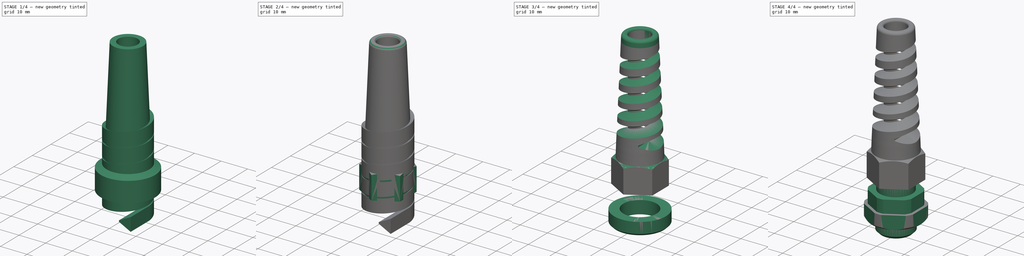
[diagram: build sequence overview — one tinted view per stage of 4, left to right]
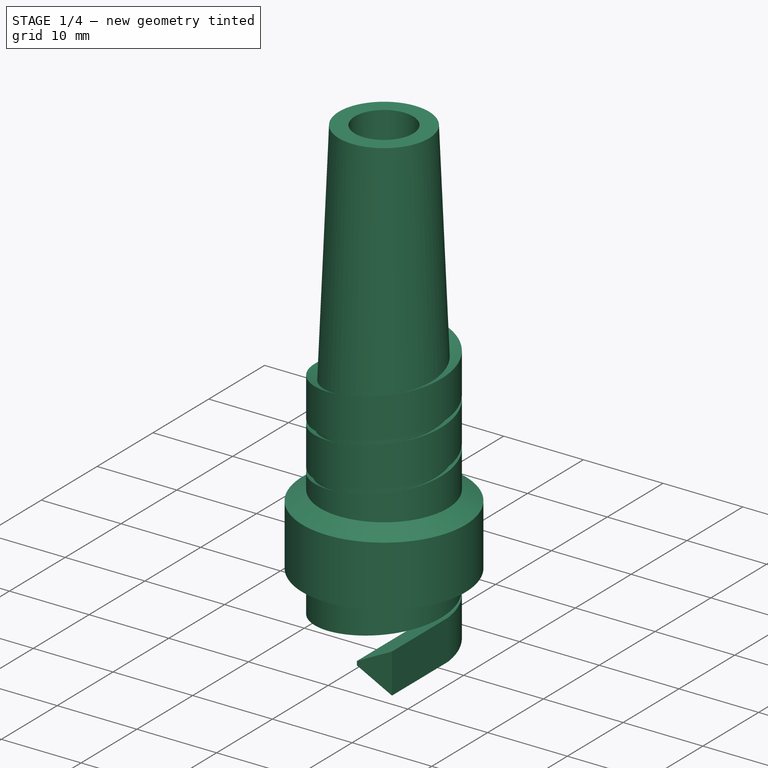
[diagram: stage 1 of 4 — iso view after this stage's code; geometry added in this stage tinted green]
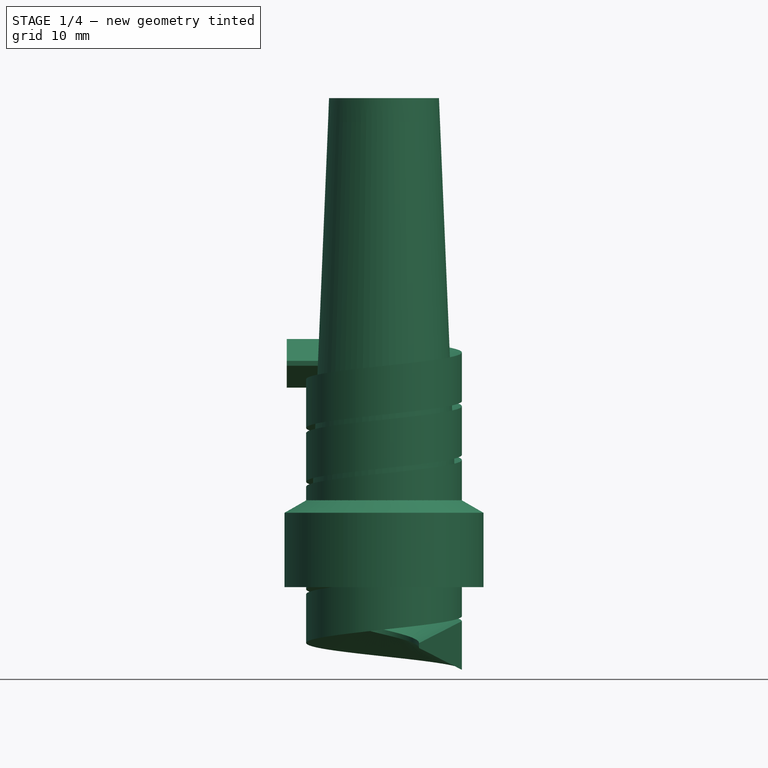
[diagram: stage 1 of 4 — front view after this stage's code; geometry added in this stage tinted green]
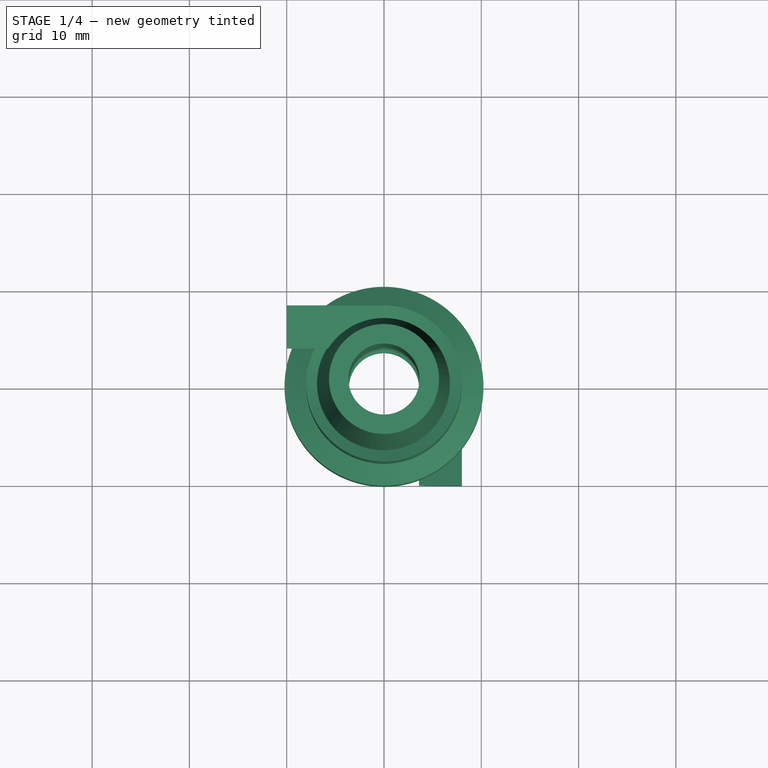
[diagram: stage 1 of 4 — top view after this stage's code; geometry added in this stage tinted green]
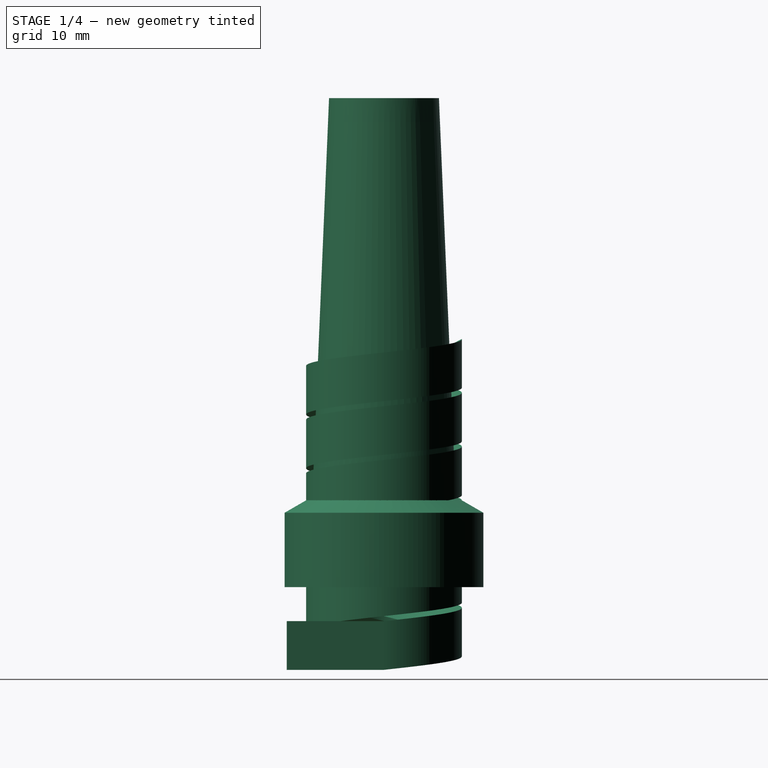
[diagram: stage 1 of 4 — right view after this stage's code; geometry added in this stage tinted green]
FCSTD DOCUMENT  (FreeCAD 0.20R29410 (Git))
Label: PG7 Flex Gland
License: All rights reserved
LicenseURL: http://en.wikipedia.org/wiki/All_rights_reserved
objects: Sketcher::SketchObject×8, PartDesign::Body×5, PartDesign::Revolution×3, PartDesign::Pocket×3, PartDesign::Pad×3, PartDesign::Fillet×2, PartDesign::Chamfer×1, PartDesign::AdditiveHelix×1, Part::Cut×1
note: 40 computed .brp shape members not serialized (recipe doc carries the construction recipe); baked Part::Feature solids carry a one-line shape summary decoded from their .brp

FEATURE [PartDesign::Body] Body
  Group = -> [Sketch,Revolution,Sketch001,Pocket]
  Origin = -> Origin
  Tip = -> Pocket
FEATURE [Sketcher::SketchObject] Sketch002
  FullyConstrained = true
  MapMode = 5
  Placement = pos=(0,0,0) rot=(1,0,0;1.5708rad)
  Support = -> [XZ_Plane001]
  sketch-geometry (9):
    g0: LineSegment StartX=5.9 StartY=6 StartZ=0 EndX=10.22 EndY=6 EndZ=0
    g1: LineSegment StartX=10.22 StartY=6 StartZ=0 EndX=10.22 EndY=13.643 EndZ=0
    g2: LineSegment StartX=10.22 StartY=13.643 StartZ=0 EndX=7.35 EndY=15.3 EndZ=0
    g3: LineSegment StartX=5.9 StartY=6 StartZ=0 EndX=5.9 EndY=17 EndZ=0
    g4: LineSegment StartX=5.9 StartY=17 StartZ=0 EndX=3.65 EndY=19.25 EndZ=0
    g5: LineSegment StartX=3.65 StartY=19.25 StartZ=0 EndX=3.65 EndY=56.25 EndZ=0
    g6: LineSegment StartX=7.35 StartY=15.3 StartZ=0 EndX=7.2 EndY=19.5 EndZ=0
    g7: LineSegment StartX=3.65 StartY=56.25 StartZ=0 EndX=5.65 EndY=56.25 EndZ=0
    g8: LineSegment StartX=5.65 StartY=56.25 StartZ=0 EndX=7.2 EndY=19.5 EndZ=0
  constraints (27):
    c: Horizontal(g0)
    c: Coincident(g0,g1)
    c: Vertical(g1)
    c: Coincident(g1,g2)
    c: Coincident(g0,g3)
    c: Vertical(g3)
    c: Coincident(g3,g4)
    c: Coincident(g4,g5)
    c: Vertical(g5)
    c: Angle(g4,g3) = 2.35619
    c: Coincident(g6,g2)
    c: DistanceY(g-1,g0) = 6
    c: DistanceX(g-1,g6) = 7.2
    c: DistanceX(g-1,g0) = 10.22
    c: Angle(g2,g1) = 2.0944
    c: DistanceX(g-1,g0) = 5.9
    c: DistanceY(g0,g2) = 9.3
    c: DistanceX(g-1,g5) = 3.65
    c: DistanceY(g0,g3) = 11
    c: Coincident(g7,g8)
    c: Coincident(g8,g6)
    c: Horizontal(g7)
    c: Coincident(g5,g7)
    c: DistanceY(g0,g5) = 50.25
    c: DistanceY(g0,g6) = 13.5
    c: DistanceX(g-1,g2) = 7.35
    c: DistanceX(g-1,g7) = 5.65
FEATURE [PartDesign::Revolution] Revolution001
  AllowMultiFace = false
  Angle = 360
  Axis = (0,-2e-16,1)
  Base = (0,0,0)
  Placement = pos=(0,0,0) rot=(1,0,0;1.5708rad)
  Profile = -> Sketch002
  ReferenceAxis = -> Sketch002 [V_Axis]
  Reversed = true
FEATURE [PartDesign::Body] Body001
  Group = -> [Sketch002,Revolution001,Sketch003,Pocket001,Fillet,Fillet001]
  Origin = -> Origin001
  Placement = pos=(0,0,2) rot=(0,0,1;0rad)
  Tip = -> Fillet001
FEATURE [Sketcher::SketchObject] Sketch007
  FullyConstrained = true
  MapMode = 5
  Placement = pos=(0,0,0) rot=(1,0,0;1.5708rad)
  Support = -> [XZ_Plane004]
  sketch-geometry (4):
    g0: LineSegment StartX=3.6 StartY=0.25 StartZ=0 EndX=3.6 EndY=-0.25 EndZ=0
    g1: LineSegment StartX=3.6 StartY=-0.25 StartZ=0 EndX=8 EndY=-2.5 EndZ=0
    g2: LineSegment StartX=8 StartY=-2.5 StartZ=0 EndX=8 EndY=2.5 EndZ=0
    g3: LineSegment StartX=8 StartY=2.5 StartZ=0 EndX=3.6 EndY=0.25 EndZ=0
  constraints (10):
    c: Coincident(g0,g1)
    c: Coincident(g1,g2)
    c: Coincident(g2,g3)
    c: Coincident(g3,g0)
    c: Symmetric(g1,g2,g-1)
    c: Symmetric(g0,g0,g-1)
    c: DistanceX(g-1,g0) = 3.6
    c: DistanceX(g-1,g2) = 8
    c: DistanceY(g0,g0) = 0.5
    c: DistanceY(g2,g2) = 5
FEATURE [PartDesign::AdditiveHelix] AdditiveHelix
  Angle = 0
  Axis = (0,2e-16,1)
  Base = (0,0,0)
  Growth = 0
  HasBeenEdited = true
  Height = 29
  LeftHanded = false
  Mode = 2
  Outside = false
  Pitch = 5.52381
  Placement = pos=(0,0,0) rot=(1,0,0;1.5708rad)
  Profile = -> Sketch007
  ReferenceAxis = -> Sketch007 [V_Axis]
  Turns = 5.25
FEATURE [PartDesign::Pad] Pad001
  BaseFeature = -> AdditiveHelix
  Direction = (-1,5.946e-13,1.2e-15)
  Length = 10
  Length2 = 10
  Placement = pos=(0,0,0) rot=(1,0,0;1.5708rad)
  Profile = -> AdditiveHelix [Face23]
  Type = 0
FEATURE [PartDesign::Pad] Pad002
  BaseFeature = -> Pad001
  Direction = (0,-1,2e-16)
  Length = 10
  Length2 = 10
  Placement = pos=(0,0,0) rot=(1,0,0;1.5708rad)
  Profile = -> Pad001 [Face1]
  Type = 0
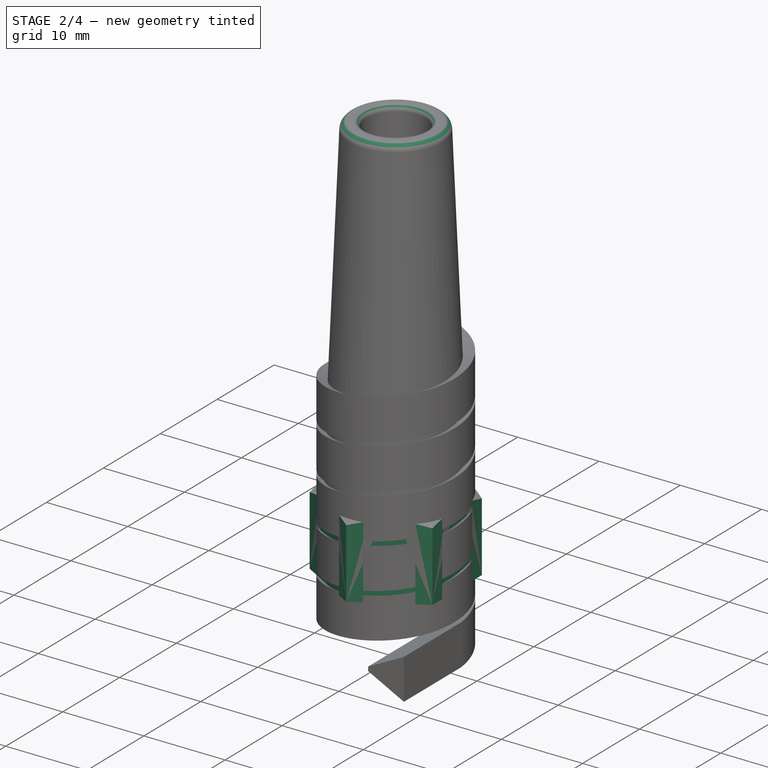
[diagram: stage 2 of 4 — iso view after this stage's code; geometry added in this stage tinted green]
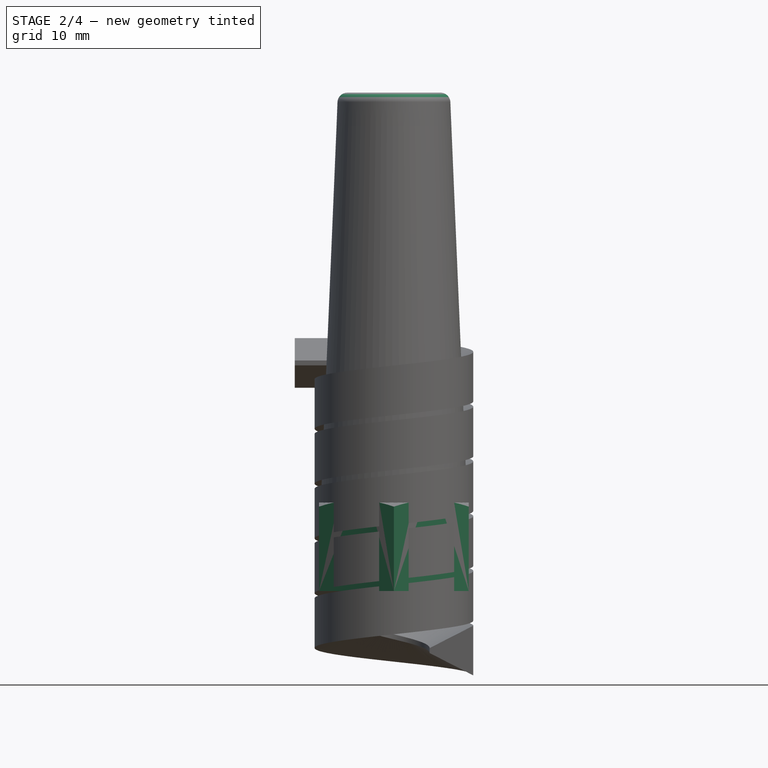
[diagram: stage 2 of 4 — front view after this stage's code; geometry added in this stage tinted green]
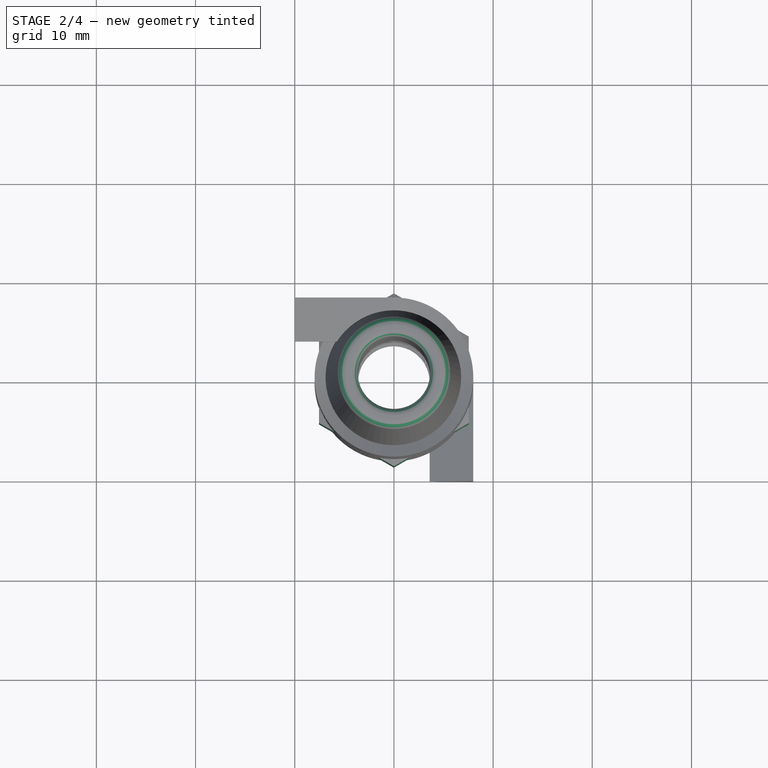
[diagram: stage 2 of 4 — top view after this stage's code; geometry added in this stage tinted green]
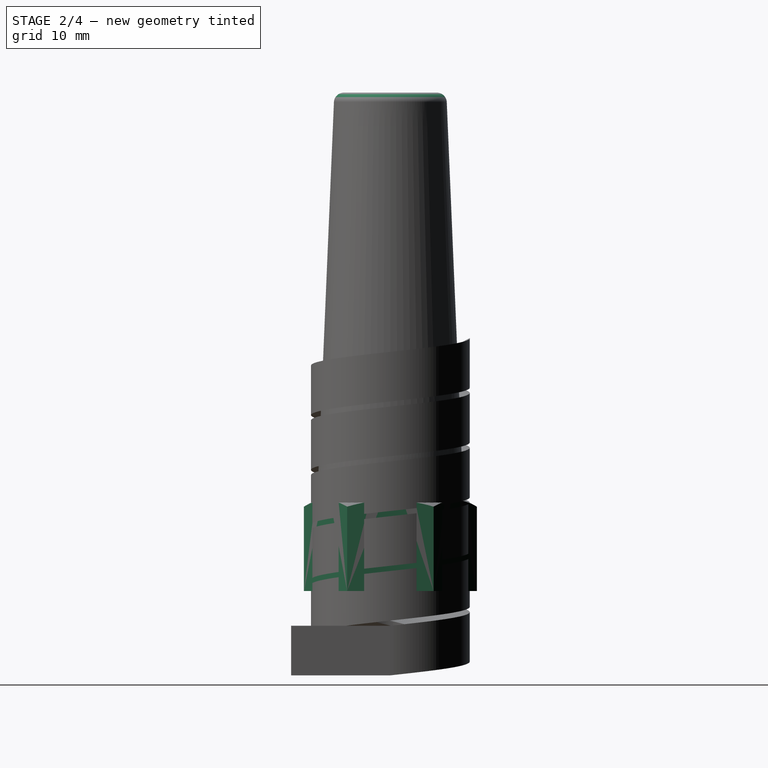
[diagram: stage 2 of 4 — right view after this stage's code; geometry added in this stage tinted green]
FEATURE [Sketcher::SketchObject] Sketch003
  FullyConstrained = true
  MapMode = 5
  Placement = pos=(0,-1.3e-15,6) rot=(1,0,0;3.14159rad)
  Support = -> [Revolution001]
  sketch-geometry (8):
    g0: LineSegment StartX=0 StartY=8.71799 StartZ=0 EndX=-7.55 EndY=4.35899 EndZ=0
    g1: LineSegment StartX=-7.55 StartY=4.35899 StartZ=0 EndX=-7.55 EndY=-4.35899 EndZ=0
    g2: LineSegment StartX=-7.55 StartY=-4.35899 StartZ=0 EndX=-1.6724e-12 EndY=-8.71799 EndZ=0
    g3: LineSegment StartX=-1.6724e-12 StartY=-8.71799 StartZ=0 EndX=7.55 EndY=-4.35899 EndZ=0
    g4: LineSegment StartX=7.55 StartY=-4.35899 StartZ=0 EndX=7.55 EndY=4.35899 EndZ=0
    g5: LineSegment StartX=7.55 StartY=4.35899 StartZ=0 EndX=0 EndY=8.71799 EndZ=0
    g6: Circle CenterX=0 CenterY=0 CenterZ=0 NormalX=0 NormalY=0 NormalZ=1 AngleXU=0 Radius=8.71799
    g7: Circle CenterX=0 CenterY=0 CenterZ=0 NormalX=0 NormalY=0 NormalZ=1 AngleXU=0 Radius=14
  constraints (18):
    c: Coincident(g0,g1)
    c: Coincident(g1,g2)
    c: Coincident(g2,g3)
    c: Coincident(g3,g4)
    c: Coincident(g4,g5)
    c: Coincident(g5,g0)
    c: Equal(g0, g1-g5) x5
    c: PointOnObject(g0,g6)
    c: PointOnObject(g1,g6)
    c: PointOnObject(g2,g6)
    c: PointOnObject(g3,g6)
    c: PointOnObject(g4,g6)
    c: PointOnObject(g5,g6)
    c: PointOnObject(g5,g-2)
    c: DistanceX(g0,g4) = 15.1
    c: Coincident(g6,g-1)
    c: Coincident(g7,g-1)
    c: Radius(g7) = 14
FEATURE [PartDesign::Pocket] Pocket001
  AllowMultiFace = false
  BaseFeature = -> Revolution001
  Direction = (0,-2e-16,1)
  Length = 5
  Length2 = 100
  Placement = pos=(0,0,0) rot=(1,0,0;1.5708rad)
  Profile = -> Sketch003
  Type = 1
FEATURE [PartDesign::Body] Body003
  Group = -> [Sketch006,Pad]
  Origin = -> Origin003
  Tip = -> Pad
FEATURE [PartDesign::Fillet] Fillet
  Base = -> Pocket001 [Edge31]
  BaseFeature = -> Pocket001
  Placement = pos=(0,0,0) rot=(1,0,0;1.5708rad)
  Radius = 1
  SupportTransform = false
  UseAllEdges = false
FEATURE [PartDesign::Fillet] Fillet001
  Base = -> Fillet [Edge8]
  BaseFeature = -> Fillet
  Placement = pos=(0,0,0) rot=(1,0,0;1.5708rad)
  Radius = 0.75
  SupportTransform = false
  UseAllEdges = false
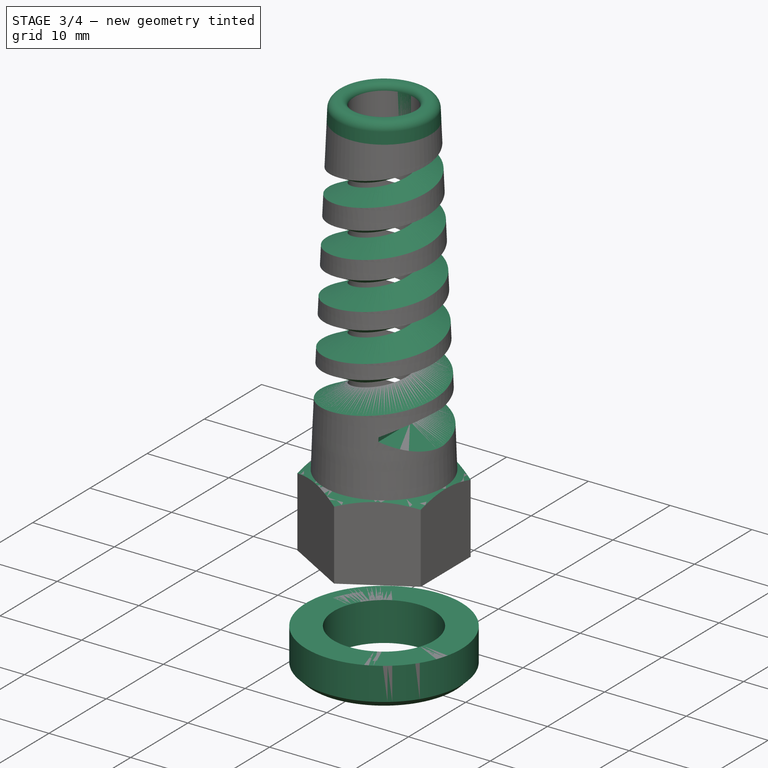
[diagram: stage 3 of 4 — iso view after this stage's code; geometry added in this stage tinted green]
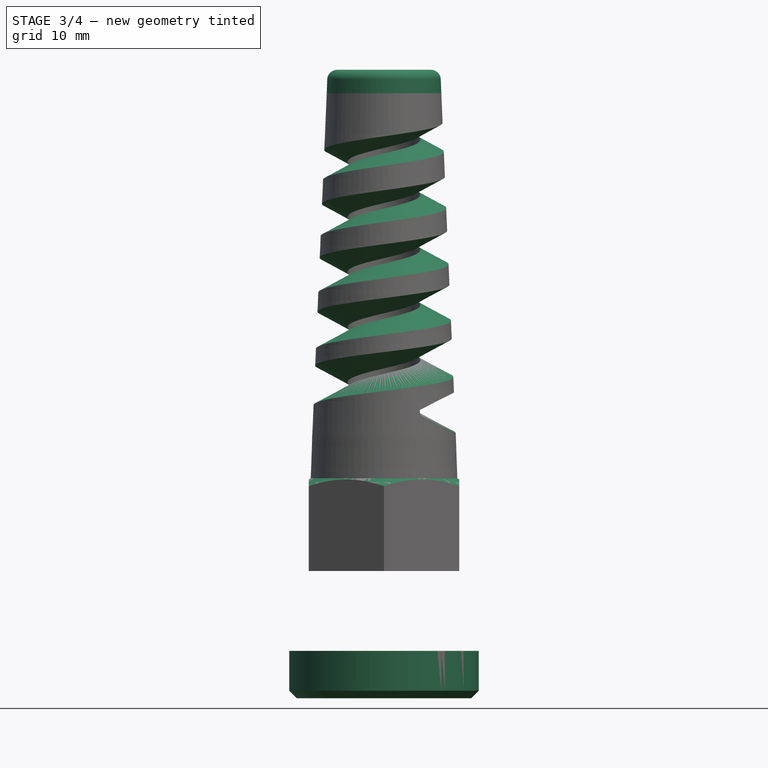
[diagram: stage 3 of 4 — front view after this stage's code; geometry added in this stage tinted green]
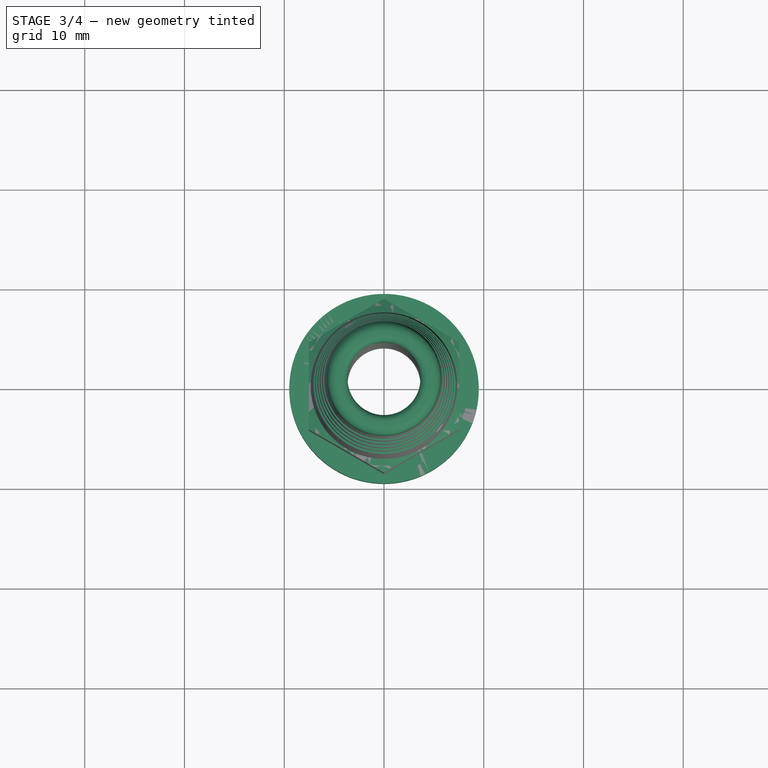
[diagram: stage 3 of 4 — top view after this stage's code; geometry added in this stage tinted green]
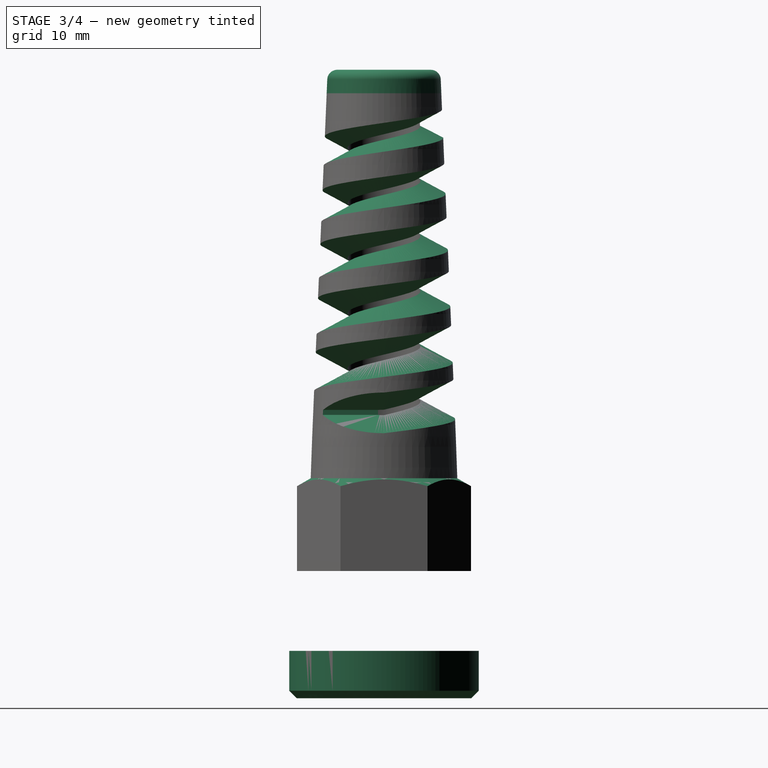
[diagram: stage 3 of 4 — right view after this stage's code; geometry added in this stage tinted green]
FEATURE [Sketcher::SketchObject] Sketch004
  FullyConstrained = true
  MapMode = 5
  Placement = pos=(0,0,0) rot=(0.57735,0.57735,0.57735;2.0944rad)
  Support = -> [YZ_Plane002]
  sketch-geometry (5):
    g0: LineSegment StartX=6.125 StartY=0 StartZ=0 EndX=6.125 EndY=-4.75 EndZ=0
    g1: LineSegment StartX=6.125 StartY=-4.75 StartZ=0 EndX=8.75 EndY=-4.75 EndZ=0
    g2: LineSegment StartX=8.75 StartY=-4.75 StartZ=0 EndX=9.5 EndY=-4 EndZ=0
    g3: LineSegment StartX=9.5 StartY=-4 StartZ=0 EndX=9.5 EndY=0 EndZ=0
    g4: LineSegment StartX=9.5 StartY=0 StartZ=0 EndX=6.125 EndY=0 EndZ=0
  constraints (15):
    c: Vertical(g0)
    c: Coincident(g2,g3)
    c: Vertical(g3)
    c: Coincident(g3,g4)
    c: Coincident(g4,g0)
    c: Horizontal(g4)
    c: DistanceY(g0,g0) = 4.75
    c: DistanceX(g-1,g0) = 6.125
    c: DistanceX(g-1,g3) = 9.5
    c: Angle(g2,g-1) = 2.35619
    c: DistanceX(g-1,g1) = 8.75
    c: Coincident(g0,g1)
    c: Coincident(g1,g2)
    c: Horizontal(g1)
    c: PointOnObject(g3,g-1)
FEATURE [PartDesign::Revolution] Revolution002
  Angle = 360
  Axis = (-2e-16,3e-16,1)
  Base = (0,0,0)
  Placement = pos=(0,0,0) rot=(0.57735,0.57735,0.57735;2.0944rad)
  Profile = -> Sketch004
  ReferenceAxis = -> Sketch004 [V_Axis]
  Reversed = true
FEATURE [PartDesign::Body] Body002
  Group = -> [Sketch004,Revolution002,Sketch005,Pocket002,Chamfer]
  Origin = -> Origin002
  Placement = pos=(0,0,-2.9) rot=(0,0,1;0rad)
  Tip = -> Chamfer
FEATURE [Sketcher::SketchObject] Sketch006
  FullyConstrained = true
  MapMode = 5
  Support = -> [XY_Plane003]
  sketch-geometry (2):
    g0: Circle CenterX=0 CenterY=0 CenterZ=0 NormalX=0 NormalY=0 NormalZ=1 AngleXU=0 Radius=8.375
    g1: Circle CenterX=0 CenterY=0 CenterZ=0 NormalX=0 NormalY=0 NormalZ=1 AngleXU=0 Radius=6.15
  constraints (4):
    c: Coincident(g0,g-1)
    c: Diameter(g0) = 16.75
    c: Coincident(g1,g0)
    c: Diameter(g1) = 12.3
FEATURE [PartDesign::Pad] Pad
  Direction = (0,0,1)
  Length = 0.9
  Length2 = 10
  Profile = -> Sketch006
  ReferenceAxis = -> Sketch006 [N_Axis]
  Reversed = true
  Type = 0
FEATURE [PartDesign::Body] Body004
  Group = -> [Sketch007,AdditiveHelix,Pad001,Pad002]
  Origin = -> Origin004
  Placement = pos=(0,0,23.9) rot=(0,0,1;0rad)
  Tip = -> Pad002
FEATURE [Part::Cut] Cut
  Base = -> Body001
  Tool = -> Body004
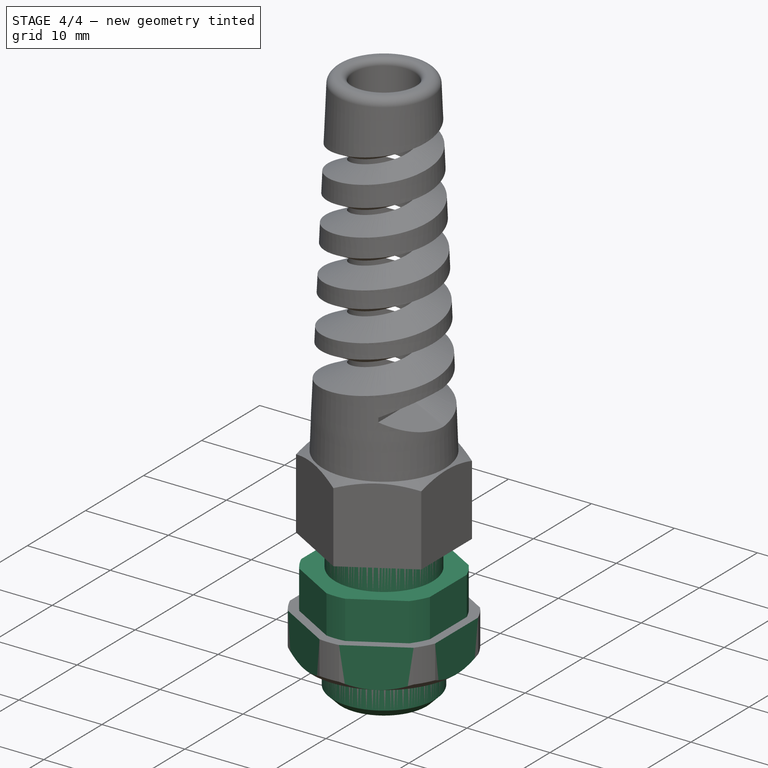
[diagram: stage 4 of 4 — iso view after this stage's code; geometry added in this stage tinted green]
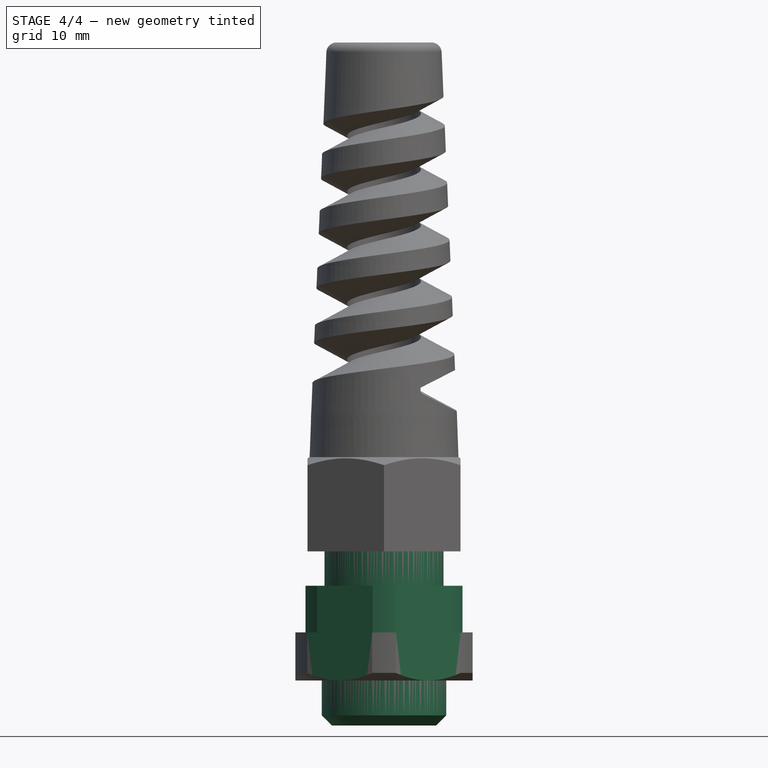
[diagram: stage 4 of 4 — front view after this stage's code; geometry added in this stage tinted green]
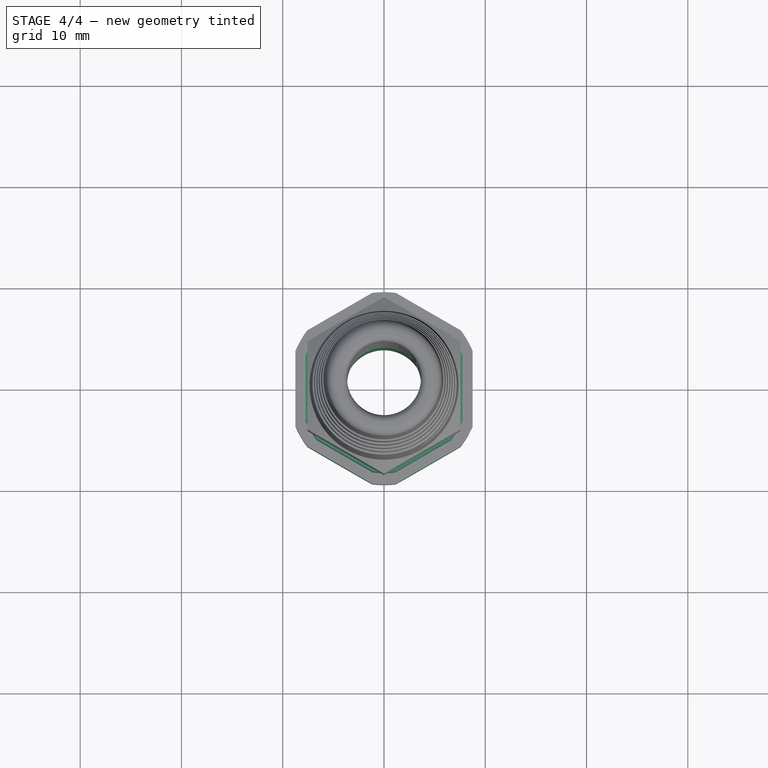
[diagram: stage 4 of 4 — top view after this stage's code; geometry added in this stage tinted green]
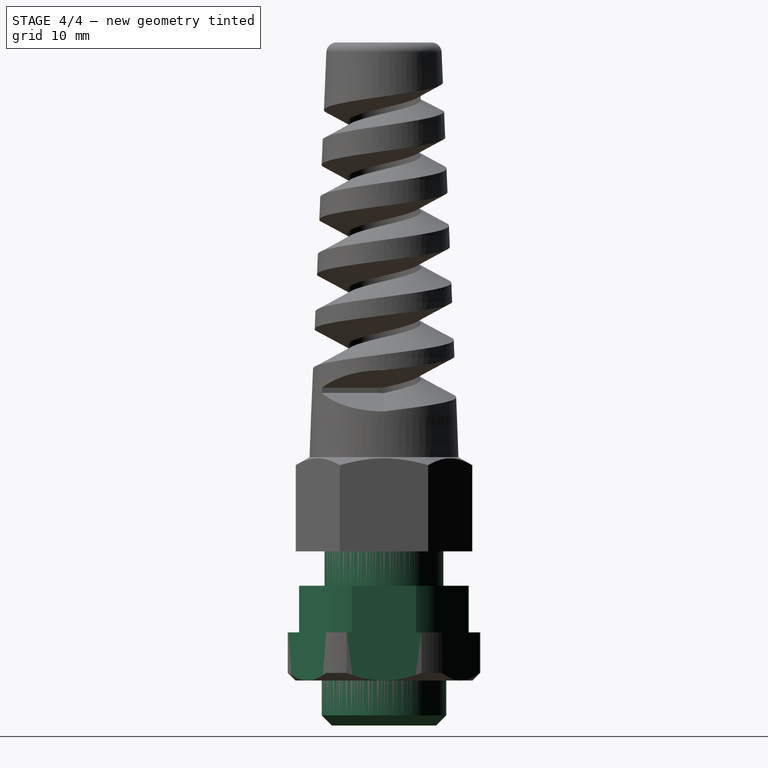
[diagram: stage 4 of 4 — right view after this stage's code; geometry added in this stage tinted green]
FEATURE [Sketcher::SketchObject] Sketch
  FullyConstrained = true
  MapMode = 5
  Placement = pos=(0,0,0) rot=(1,0,0;1.5708rad)
  Support = -> [XZ_Plane]
  sketch-geometry (10):
    g0: LineSegment StartX=3.915 StartY=-9.2 StartZ=0 EndX=3.915 EndY=19.8 EndZ=0
    g1: LineSegment StartX=5.87 StartY=13.8 StartZ=0 EndX=5.87 EndY=4.6 EndZ=0
    g2: LineSegment StartX=5.87 StartY=4.6 StartZ=0 EndX=8.375 EndY=4.6 EndZ=0
    g3: LineSegment StartX=8.375 StartY=4.6 StartZ=0 EndX=8.375 EndY=0 EndZ=0
    g4: LineSegment StartX=8.375 StartY=0 StartZ=0 EndX=6.15 EndY=0 EndZ=0
    g5: LineSegment StartX=6.15 StartY=0 StartZ=0 EndX=6.15 EndY=-8.2 EndZ=0
    g6: LineSegment StartX=6.15 StartY=-8.2 StartZ=0 EndX=5.15 EndY=-9.2 EndZ=0
    g7: LineSegment StartX=5.15 StartY=-9.2 StartZ=0 EndX=3.915 EndY=-9.2 EndZ=0
    g8: LineSegment StartX=5.87 StartY=13.8 StartZ=0 EndX=4.915 EndY=19.8 EndZ=0
    g9: LineSegment StartX=4.915 StartY=19.8 StartZ=0 EndX=3.915 EndY=19.8 EndZ=0
  constraints (30):
    c: Vertical(g0)
    c: Vertical(g1)
    c: Coincident(g1,g2)
    c: Horizontal(g2)
    c: Coincident(g2,g3)
    c: Vertical(g3)
    c: Coincident(g3,g4)
    c: Horizontal(g4)
    c: Coincident(g4,g5)
    c: Vertical(g5)
    c: Coincident(g5,g6)
    c: Coincident(g6,g7)
    c: Coincident(g7,g0)
    c: Horizontal(g7)
    c: Coincident(g8,g9)
    c: Coincident(g9,g0)
    c: Horizontal(g9)
    c: DistanceY(g0,g-1) = 9.2
    c: DistanceY(g6,g5) = 1
    c: Angle(g6,g7) = 2.35619
    c: DistanceX(g-1,g5) = 6.15
    c: DistanceX(g-1,g0) = 3.915
    c: PointOnObject(g4,g-1)
    c: DistanceY(g3,g3) = 4.6
    c: DistanceX(g-1,g3) = 8.375
    c: DistanceX(g-1,g1) = 5.87
    c: Coincident(g8,g1)
    c: DistanceY(g1,g8) = 6
    c: DistanceX(g0,g8) = 1
    c: DistanceY(g2,g8) = 15.2
FEATURE [PartDesign::Revolution] Revolution
  AllowMultiFace = false
  Angle = 360
  Axis = (0,-2e-16,1)
  Base = (0,0,0)
  Placement = pos=(0,0,0) rot=(1,0,0;1.5708rad)
  Profile = -> Sketch
  ReferenceAxis = -> Sketch [V_Axis]
  Reversed = true
FEATURE [Sketcher::SketchObject] Sketch001
  FullyConstrained = true
  MapMode = 5
  Placement = pos=(0,1e-15,4.6) rot=(0,0,1;3.14159rad)
  Support = -> [Revolution]
  sketch-geometry (8):
    g0: LineSegment StartX=-9e-16 StartY=8.94893 StartZ=0 EndX=-7.75 EndY=4.47446 EndZ=0
    g1: LineSegment StartX=-7.75 StartY=4.47446 StartZ=0 EndX=-7.75 EndY=-4.47446 EndZ=0
    g2: LineSegment StartX=-7.75 StartY=-4.47446 StartZ=0 EndX=-2.73692e-11 EndY=-8.94893 EndZ=0
    g3: LineSegment StartX=-2.73692e-11 StartY=-8.94893 StartZ=0 EndX=7.75 EndY=-4.47446 EndZ=0
    g4: LineSegment StartX=7.75 StartY=-4.47446 StartZ=0 EndX=7.75 EndY=4.47446 EndZ=0
    g5: LineSegment StartX=7.75 StartY=4.47446 StartZ=0 EndX=-9e-16 EndY=8.94893 EndZ=0
    g6: Circle CenterX=0 CenterY=0 CenterZ=0 NormalX=0 NormalY=0 NormalZ=1 AngleXU=0 Radius=8.94893
    g7: Circle CenterX=0 CenterY=0 CenterZ=0 NormalX=0 NormalY=0 NormalZ=1 AngleXU=0 Radius=14
  constraints (18):
    c: Coincident(g0,g1)
    c: Coincident(g1,g2)
    c: Coincident(g2,g3)
    c: Coincident(g3,g4)
    c: Coincident(g4,g5)
    c: Coincident(g5,g0)
    c: Equal(g0, g1-g5) x5
    c: PointOnObject(g0,g6)
    c: PointOnObject(g1,g6)
    c: PointOnObject(g2,g6)
    c: PointOnObject(g3,g6)
    c: PointOnObject(g4,g6)
    c: PointOnObject(g5,g6)
    c: Coincident(g6,g-1)
    c: PointOnObject(g5,g-2)
    c: DistanceX(g0,g4) = 15.5
    c: Coincident(g7,g-1)
    c: Radius(g7) = 14
FEATURE [PartDesign::Pocket] Pocket
  AllowMultiFace = false
  BaseFeature = -> Revolution
  Direction = (0,2e-16,-1)
  Length = 5
  Length2 = 100
  Placement = pos=(0,0,0) rot=(1,0,0;1.5708rad)
  Profile = -> Sketch001
  Type = 1
FEATURE [Sketcher::SketchObject] Sketch005
  FullyConstrained = false
  MapMode = 5
  Placement = pos=(2.1e-15,-1.3e-15,-4.75) rot=(0.707107,0.707107,0;3.14159rad)
  Support = -> [Revolution002]
  sketch-geometry (8):
    g0: LineSegment StartX=10.1036 StartY=0 StartZ=0 EndX=5.05181 EndY=8.75 EndZ=0
    g1: LineSegment StartX=5.05181 StartY=8.75 StartZ=0 EndX=-5.05181 EndY=8.75 EndZ=0
    g2: LineSegment StartX=-5.05181 StartY=8.75 StartZ=0 EndX=-10.1036 EndY=1.06652e-11 EndZ=0
    g3: LineSegment StartX=-10.1036 StartY=1.06658e-11 StartZ=0 EndX=-5.05181 EndY=-8.75 EndZ=0
    g4: LineSegment StartX=-5.05181 StartY=-8.75 StartZ=0 EndX=5.05181 EndY=-8.75 EndZ=0
    g5: LineSegment StartX=5.05181 StartY=-8.75 StartZ=0 EndX=10.1036 EndY=0 EndZ=0
    g6: Circle CenterX=0 CenterY=0 CenterZ=0 NormalX=0 NormalY=0 NormalZ=1 AngleXU=0 Radius=10.1036
    g7: Circle CenterX=0 CenterY=0 CenterZ=0 NormalX=0 NormalY=0 NormalZ=1 AngleXU=0 Radius=15.0409
  constraints (17):
    c: Coincident(g0,g1)
    c: Coincident(g1,g2)
    c: Coincident(g2,g3)
    c: Coincident(g3,g4)
    c: Coincident(g4,g5)
    c: Coincident(g5,g0)
    c: Equal(g0, g1-g5) x5
    c: PointOnObject(g0,g6)
    c: PointOnObject(g1,g6)
    c: PointOnObject(g2,g6)
    c: PointOnObject(g3,g6)
    c: PointOnObject(g4,g6)
    c: PointOnObject(g5,g6)
    c: Coincident(g6,g-1)
    c: PointOnObject(g5,g-1)
    c: DistanceY(g4,g0) = 17.5
    c: Coincident(g7,g6)
FEATURE [PartDesign::Pocket] Pocket002
  BaseFeature = -> Revolution002
  Direction = (-6e-16,4e-16,1)
  Length = 5
  Length2 = 5
  Placement = pos=(0,0,0) rot=(0.57735,0.57735,0.57735;2.0944rad)
  Profile = -> Sketch005
  ReferenceAxis = -> Sketch005 [N_Axis]
  Type = 1
FEATURE [PartDesign::Chamfer] Chamfer
  Angle = 45
  Base = -> Pocket002 [Edge2,Edge1]
  BaseFeature = -> Pocket002
  ChamferType = 0
  FlipDirection = false
  Placement = pos=(0,0,0) rot=(0.57735,0.57735,0.57735;2.0944rad)
  Size = 0.5
  Size2 = 1
  SupportTransform = false
  UseAllEdges = false
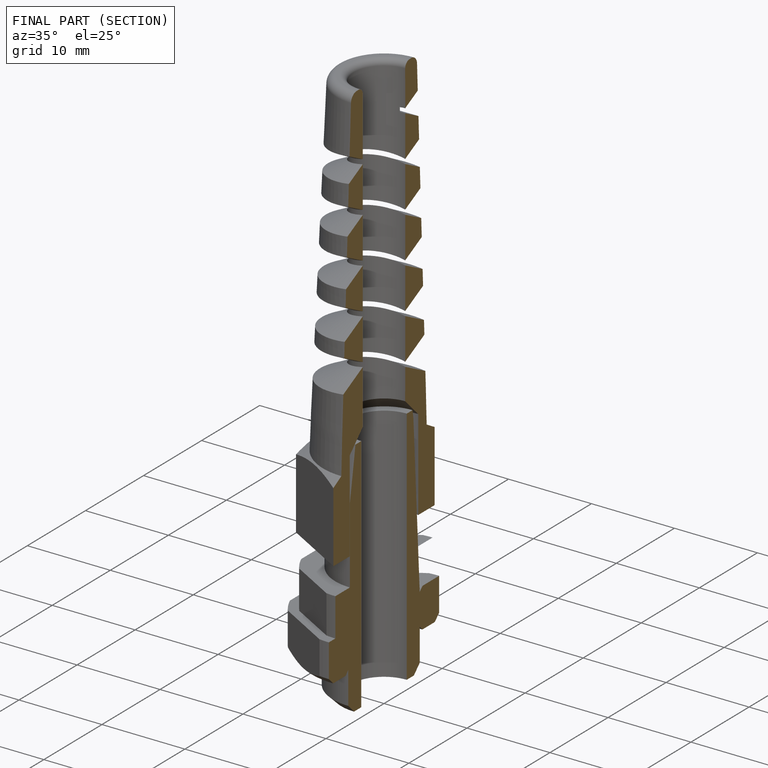
[diagram: finished part — half-section view (interior)]
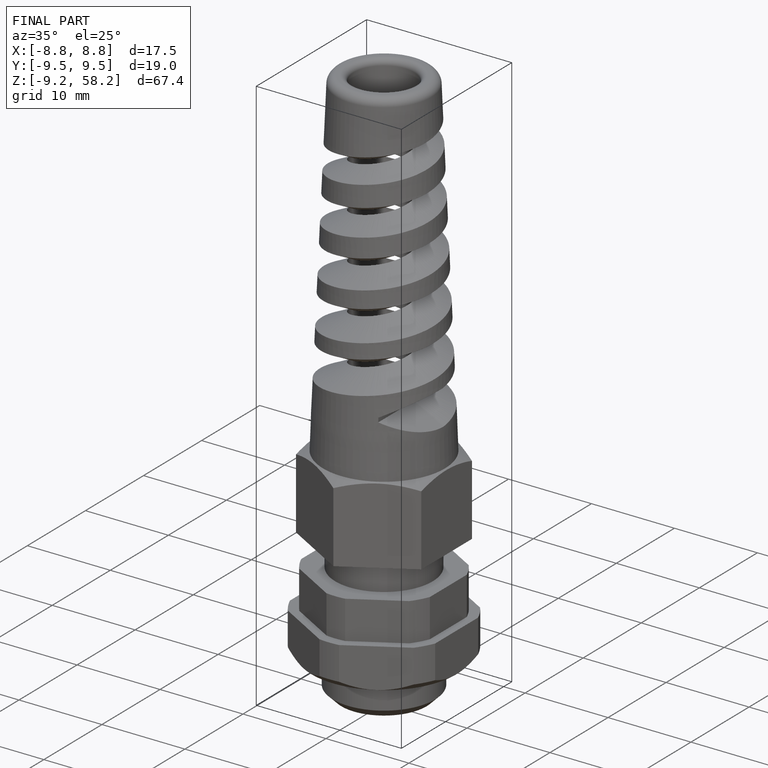
[diagram: finished part — iso view with bounding-box wireframe]
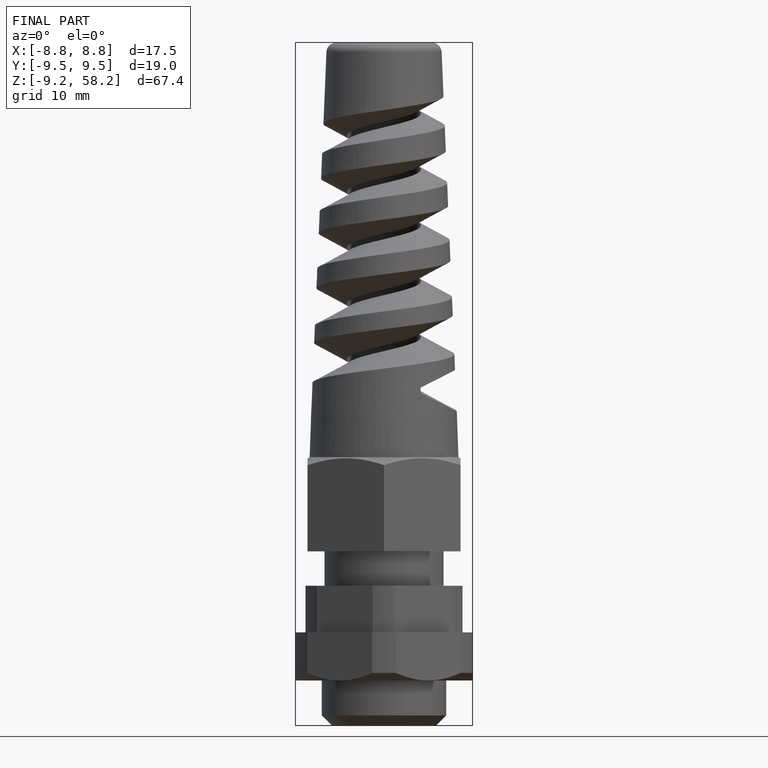
[diagram: finished part — front view with bounding-box wireframe]
